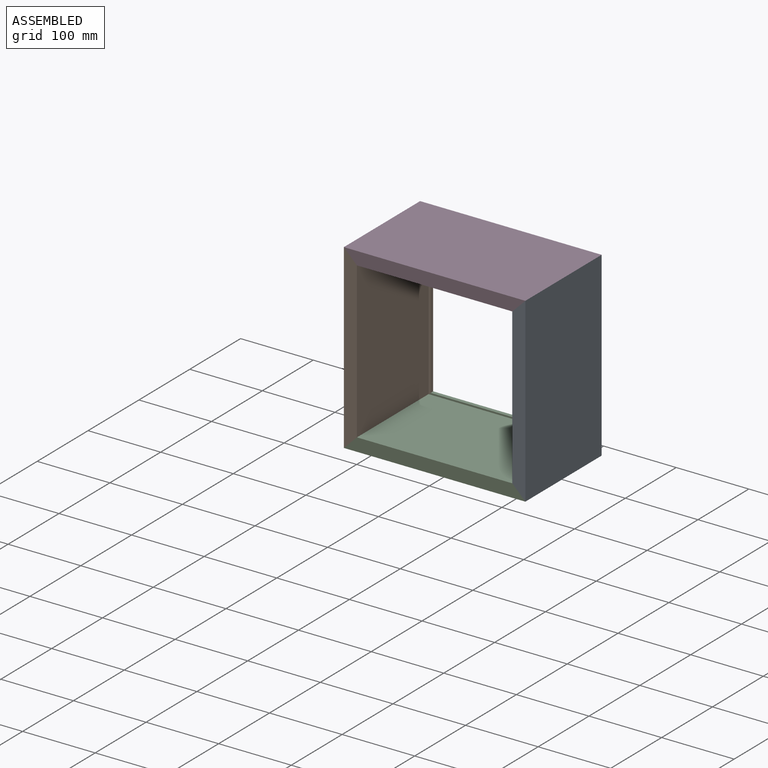
[diagram: assembled view]
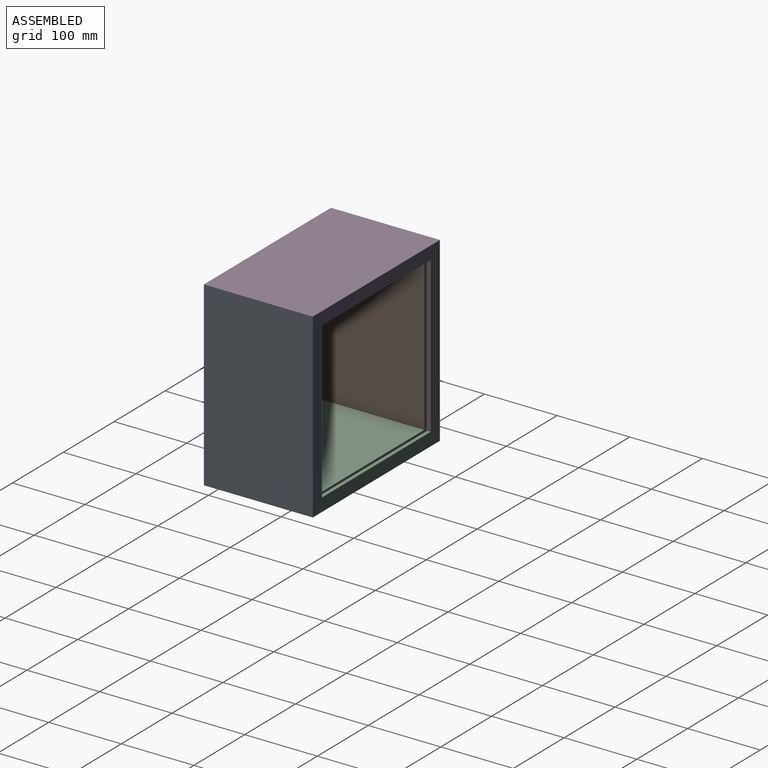
[diagram: assembled view, second angle]
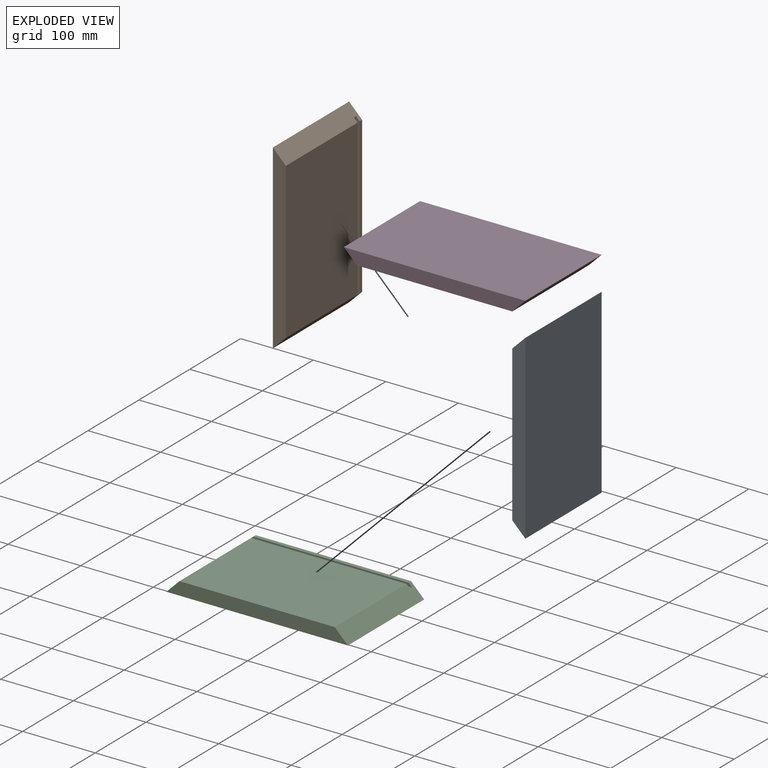
[diagram: exploded view]
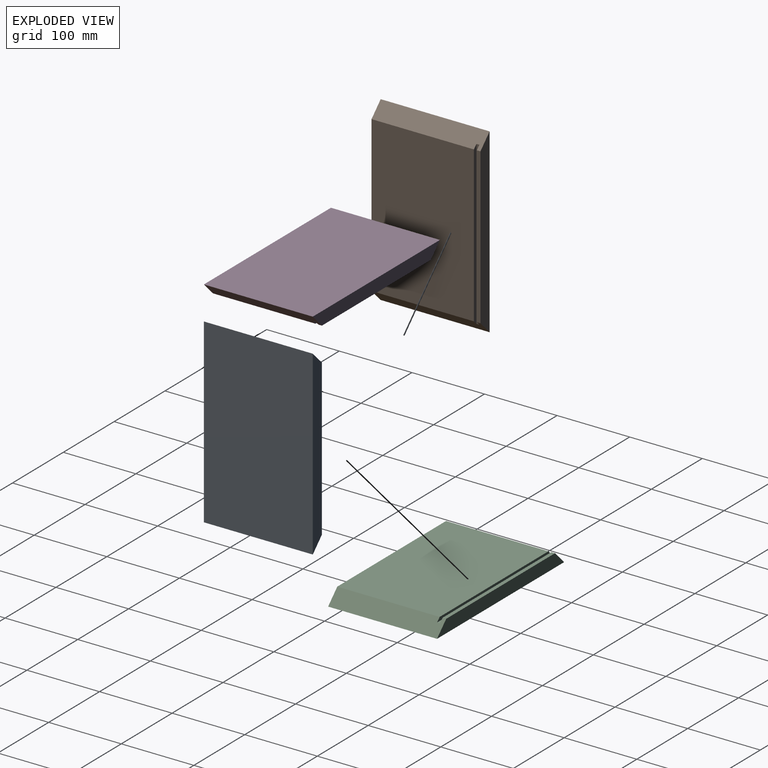
[diagram: exploded view, second angle]
ASSEMBLY  parts=4 mates=3
PART A: 10 faces, bbox 250x150x18 mm
  f0: plane 214x141mm, normal (0,0,1), area 30174mm2, adj f1,f3,f5,f8
  f1: plane 150x18mm, normal (-0.71,0,0.71), area 3790.1mm2, adj f0,f2,f4,f5,f6,f7,f8,f9
  f2: plane 250x150mm, normal (0,0,-1), area 37500mm2, adj f1,f3,f5,f6
  f3: plane 150x18mm, normal (0.71,0,0.71), area 3790.1mm2, adj f0,f2,f4,f5,f6,f7,f8,f9
  f4: plane 214x5mm, normal (0,0,1), area 1070mm2, adj f1,f3,f6,f7
  f5: plane 250x18mm, normal (0,-1,0), area 4176mm2, adj f0,f1,f2,f3
  f6: plane 250x18mm, normal (0,1,0), area 4176mm2, adj f1,f2,f3,f4
  f7: plane 224x5mm, normal (0,-1,0), area 1095mm2, adj f1,f3,f4,f9
  f8: plane 224x5mm, normal (0,1,0), area 1095mm2, adj f0,f1,f3,f9
  f9: plane 224x4mm, normal (0,0,1), area 896mm2, adj f1,f3,f7,f8
PART B: same geometry as A
PART C: same geometry as A
PART D: same geometry as A
PLACE A rot(axis=(0,-1,0),90deg) t=(220.64,138.22,24.66)mm
PLACE B rot(axis=(0,1,0),90deg) t=(-29.36,138.22,274.66)mm
PLACE C t=(-29.36,138.22,24.66)mm
PLACE D rot(axis=(0,-1,0),180deg) t=(220.64,138.22,274.66)mm
MATE fastened B.f3 <-> C.f1  axis (0.71,0,-0.71) through (-20.41,62.72,33.61)mm
MATE fastened D.f1 <-> A.f3  axis (0.71,0,-0.71) through (211.69,62.72,265.7)mm
MATE fastened A.f1 <-> C.f3  axis (-0.71,0,-0.71) through (211.69,62.72,33.61)mm
